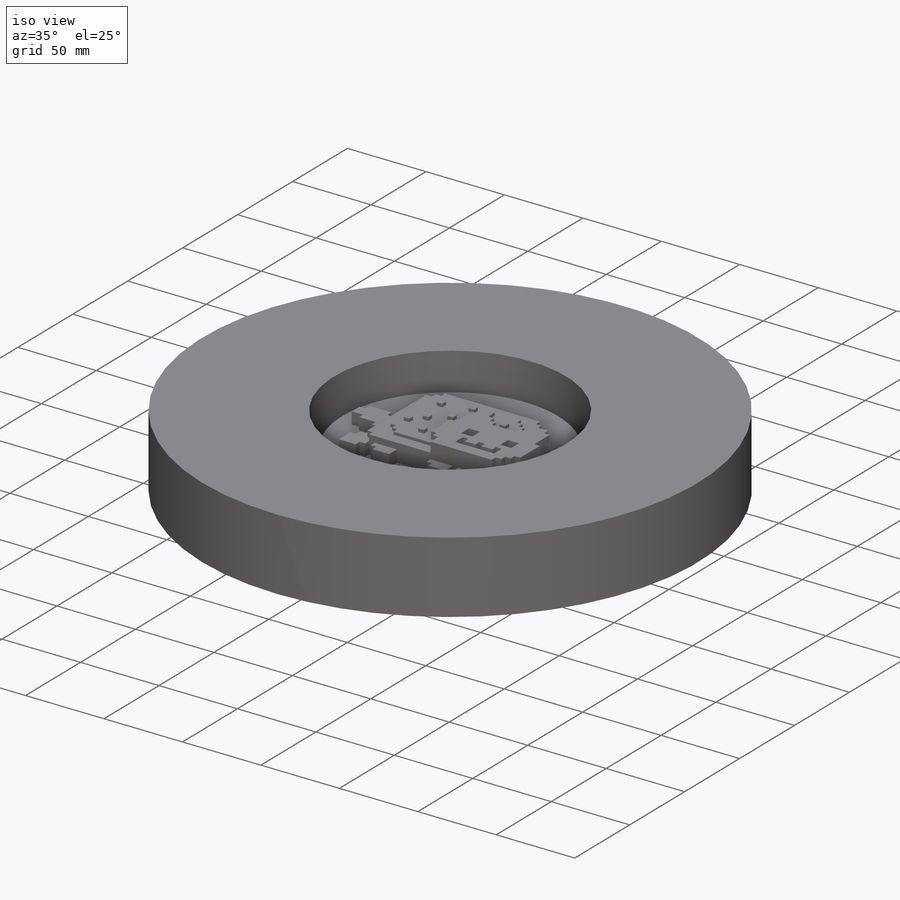
[diagram: iso view]
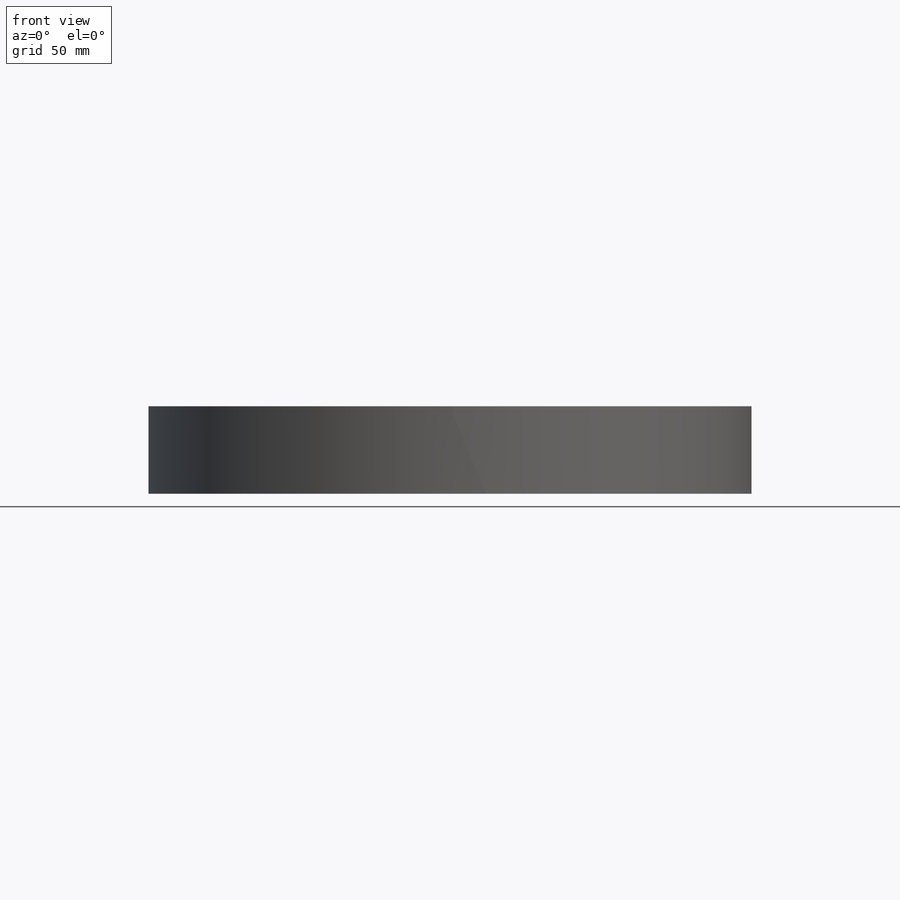
[diagram: front view]
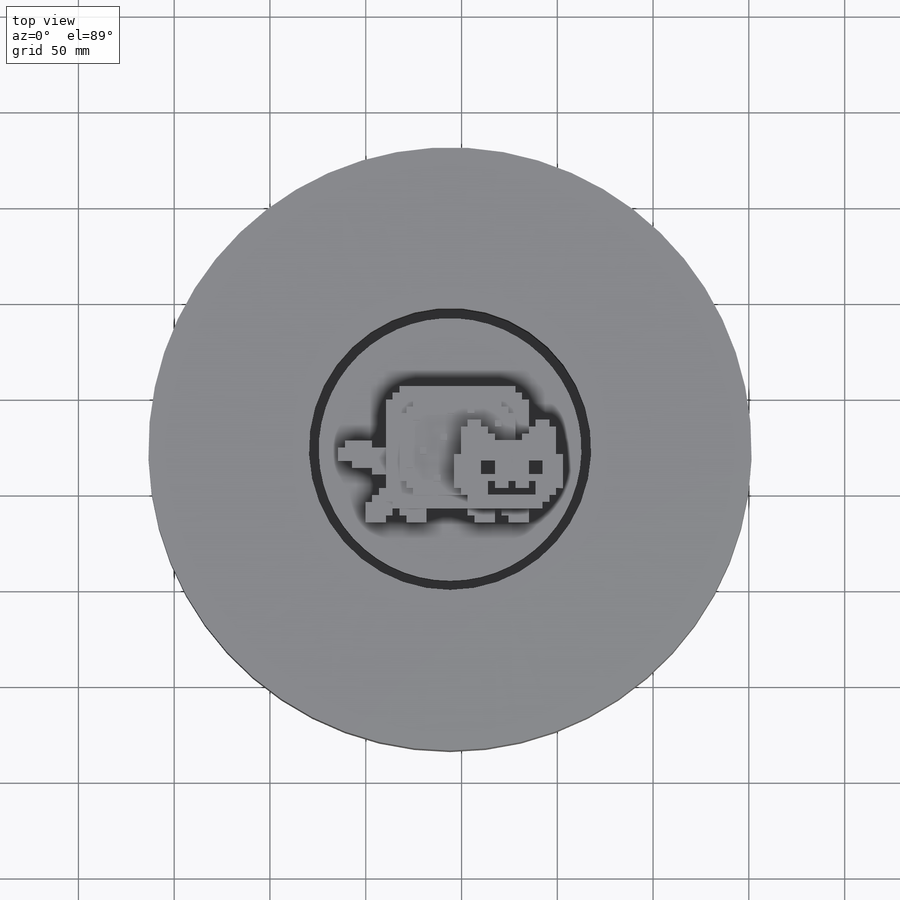
[diagram: top view]
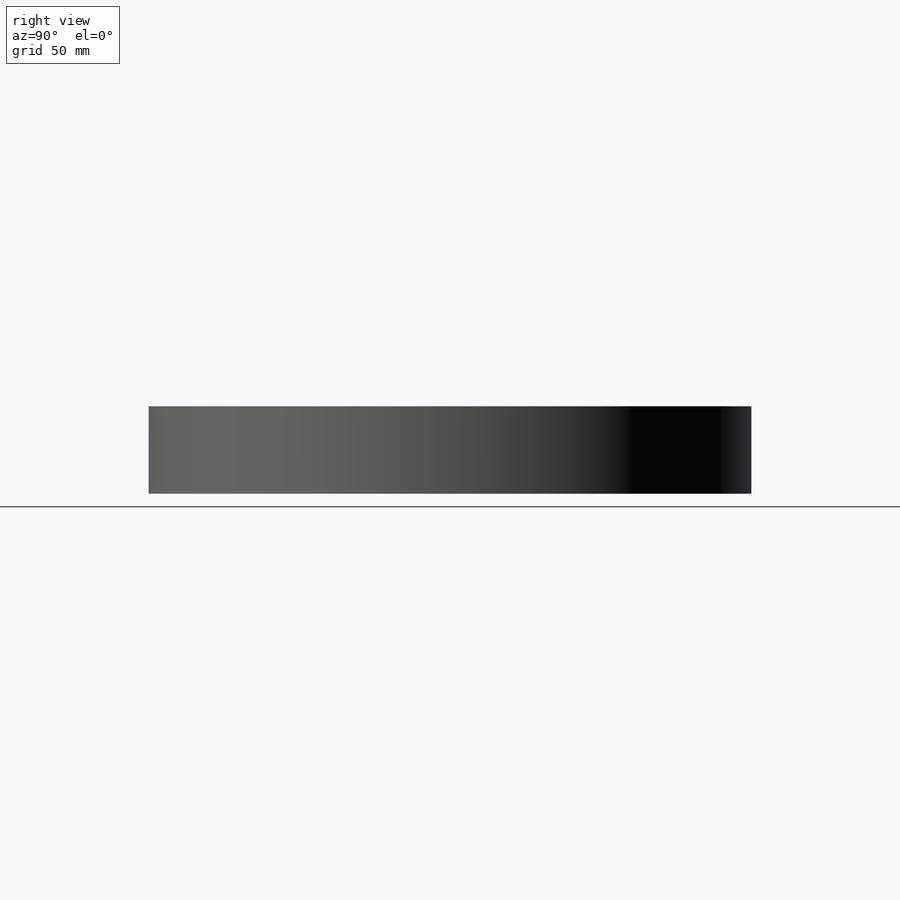
[diagram: right view]
SOLIDWORKS PART (.sldprt)
format: sldprt  version: not decoded by parser v0  size: 564,224 bytes
history: native  units: mm
features: sketch x12, extrude x10, material x1 (+11 scaffold rows collapsed)
feature tree (34):
  scaffold x11  (default folders/planes/origin — collapsed)
  material  "Material <not specified>"
  sketch  "Sketch1"
  sketch  "face"
  sketch  "poptart"
  sketch  "feet tail"
  sketch  "sprinkles"
  sketch  "engrave poptart"
  sketch  "rainbow tail"
  extrude  "face-"  Depth=17.78mm
  extrude  "feettail"  Depth=7.62mm
  extrude  "poptart-"  Depth=11.43mm
  extrude  "sprinkle"  Depth=15.24mm
  extrude  "engrave"  Depth=13.208mm
  sketch  "Sketch2"  dims[D1=12.7mm]
  sketch  "Sketch4"  dims[c1.D2=~80.824641mm c1.D1=12.7mm c2.D2=3.81mm c2.D1=76.2mm]
  extrude  "CUPCAKE"  Depth=15.24mm
  extrude  "retaining"  Depth=45.72mm
  sketch  "Sketch5"  dims[D1=12.7mm]
  extrude  "cupcake body"  Depth=6.35mm
  sketch  "Sketch10"  dims[D1=12.7mm]
  extrude  "Boss-Extrude1"  Depth=2.54mm
  sketch  "Sketch11"
  extrude  "Boss-Extrude2"  Depth=3.81mm
decode coverage: 14 of 22 modeling features carry decoded parameters
note: ~ marks probable driven/reference dimensions
note: suppression state not decoded; provenance and decode notes live in map.json
